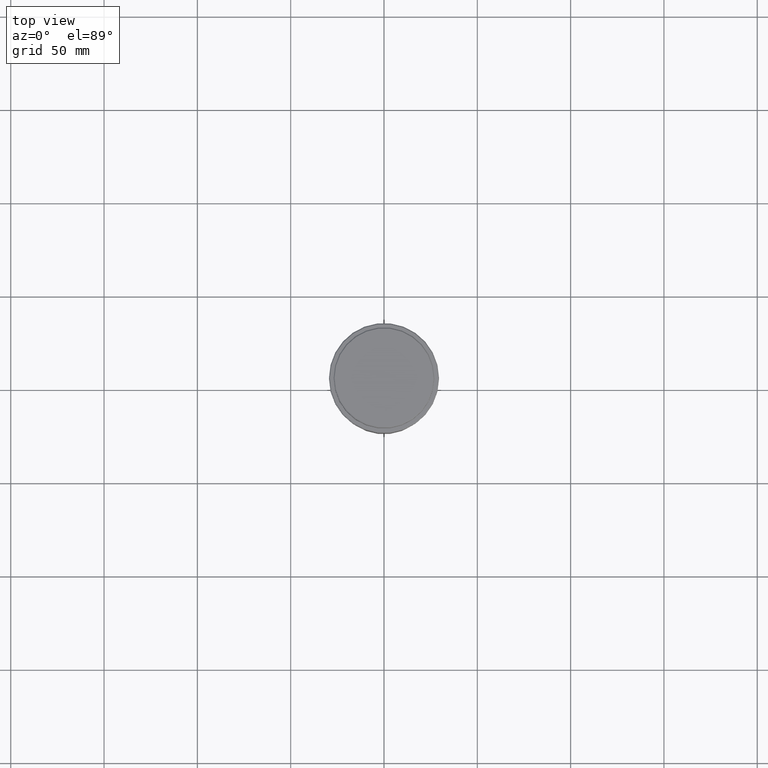
[diagram: clean part render]
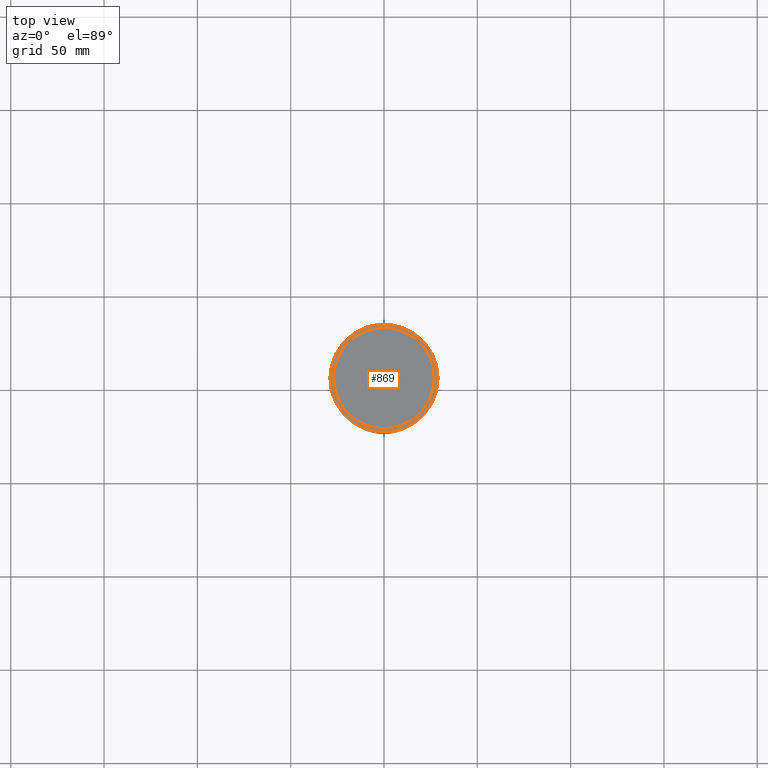
[diagram: same view with one face highlighted and labeled with its STEP entity id]
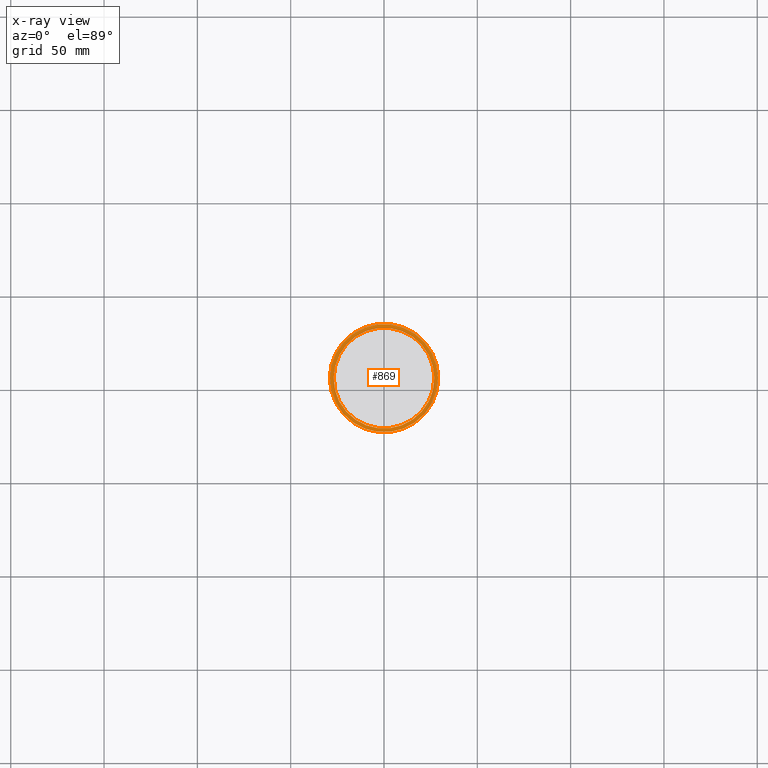
[diagram: x-ray of the same camera — body ghosted, the highlighted face saturated]
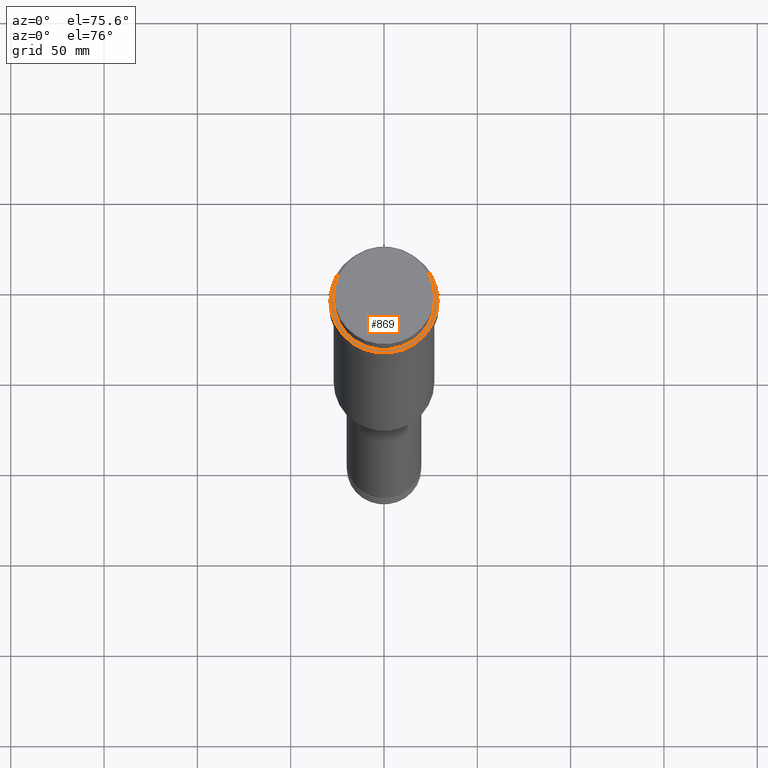
[diagram: same view with one face highlighted and labeled with its STEP entity id]
A machine part, top view. The second image highlights one B-rep face of the part: STEP entity #869.
The next image is the same camera in x-ray: the body ghosted, the highlighted face saturated — about 0% of this face is hidden behind the body in this view.
A second angle (auxiliary view) of the same face is appended — the face is thin or edge-on in the first view.
In plain terms, the highlighted planar face has unit normal (0, -0, 1).
Its self-contained STEP definition (entity closure, byte-faithful):
#27 = DIRECTION ( 'NONE',  ( 0.000000000000000000, 0.000000000000000000, -1.000000000000000000 ) ) ;
#74 = CARTESIAN_POINT ( 'NONE',  ( 0.000000000000000000, 0.000000000000000000, -12.00000000000000355 ) ) ;
#124 = AXIS2_PLACEMENT_3D ( 'NONE', #680, #27, #231 ) ;
#154 = ORIENTED_EDGE ( 'NONE', *, *, #528, .T. ) ;
#178 = CARTESIAN_POINT ( 'NONE',  ( 0.000000000000000000, 0.000000000000000000, -12.00000000000000355 ) ) ;
#185 = CIRCLE ( 'NONE', #419, 26.99999999999999645 ) ;
#187 = CIRCLE ( 'NONE', #493, 28.99999999999997158 ) ;
#203 = EDGE_CURVE ( 'NONE', #530, #408, #185, .T. ) ;
#231 = DIRECTION ( 'NONE',  ( 1.000000000000000000, 0.000000000000000000, 0.000000000000000000 ) ) ;
#273 = CARTESIAN_POINT ( 'NONE',  ( -28.99999999999997158, 0.000000000000000000, -12.00000000000000355 ) ) ;
#283 = ORIENTED_EDGE ( 'NONE', *, *, #203, .T. ) ;
#334 = DIRECTION ( 'NONE',  ( -0.000000000000000000, -0.000000000000000000, 1.000000000000000000 ) ) ;
#393 = PLANE ( 'NONE',  #564 ) ;
#408 = VERTEX_POINT ( 'NONE', #1154 ) ;
#419 = AXIS2_PLACEMENT_3D ( 'NONE', #761, #1092, #886 ) ;
#464 = VERTEX_POINT ( 'NONE', #930 ) ;
#490 = EDGE_CURVE ( 'NONE', #879, #464, #629, .T. ) ;
#493 = AXIS2_PLACEMENT_3D ( 'NONE', #178, #334, #650 ) ;
#502 = DIRECTION ( 'NONE',  ( 1.000000000000000000, 0.000000000000000000, 0.000000000000000000 ) ) ;
#528 = EDGE_CURVE ( 'NONE', #464, #879, #187, .T. ) ;
#530 = VERTEX_POINT ( 'NONE', #1212 ) ;
#564 = AXIS2_PLACEMENT_3D ( 'NONE', #1153, #822, #502 ) ;
#600 = FACE_BOUND ( 'NONE', #1289, .T. ) ;
#601 = DIRECTION ( 'NONE',  ( -0.000000000000000000, -0.000000000000000000, 1.000000000000000000 ) ) ;
#629 = CIRCLE ( 'NONE', #652, 28.99999999999997158 ) ;
#650 = DIRECTION ( 'NONE',  ( 1.000000000000000000, 0.000000000000000000, 0.000000000000000000 ) ) ;
#652 = AXIS2_PLACEMENT_3D ( 'NONE', #74, #601, #837 ) ;
#680 = CARTESIAN_POINT ( 'NONE',  ( 0.000000000000000000, 0.000000000000000000, -12.00000000000000355 ) ) ;
#722 = FACE_OUTER_BOUND ( 'NONE', #871, .T. ) ;
#761 = CARTESIAN_POINT ( 'NONE',  ( 0.000000000000000000, 0.000000000000000000, -12.00000000000000355 ) ) ;
#822 = DIRECTION ( 'NONE',  ( 0.000000000000000000, -0.000000000000000000, 1.000000000000000000 ) ) ;
#836 = CIRCLE ( 'NONE', #124, 26.99999999999999645 ) ;
#837 = DIRECTION ( 'NONE',  ( 1.000000000000000000, 0.000000000000000000, 0.000000000000000000 ) ) ;
#869 = ADVANCED_FACE ( 'NONE', ( #722, #600 ), #393, .T. ) ;
#871 = EDGE_LOOP ( 'NONE', ( #1072, #154 ) ) ;
#879 = VERTEX_POINT ( 'NONE', #273 ) ;
#886 = DIRECTION ( 'NONE',  ( 1.000000000000000000, 0.000000000000000000, 0.000000000000000000 ) ) ;
#891 = ORIENTED_EDGE ( 'NONE', *, *, #1114, .T. ) ;
#930 = CARTESIAN_POINT ( 'NONE',  ( 28.99999999999997158, 3.582091887506006239E-15, -12.00000000000000355 ) ) ;
#1072 = ORIENTED_EDGE ( 'NONE', *, *, #490, .T. ) ;
#1092 = DIRECTION ( 'NONE',  ( 0.000000000000000000, 0.000000000000000000, -1.000000000000000000 ) ) ;
#1114 = EDGE_CURVE ( 'NONE', #408, #530, #836, .T. ) ;
#1153 = CARTESIAN_POINT ( 'NONE',  ( 0.000000000000000000, 26.49999999999999645, -12.00000000000000355 ) ) ;
#1154 = CARTESIAN_POINT ( 'NONE',  ( -26.99999999999999645, 3.306546357697853339E-15, -12.00000000000000355 ) ) ;
#1212 = CARTESIAN_POINT ( 'NONE',  ( 26.99999999999999645, 0.000000000000000000, -12.00000000000000355 ) ) ;
#1289 = EDGE_LOOP ( 'NONE', ( #283, #891 ) ) ;